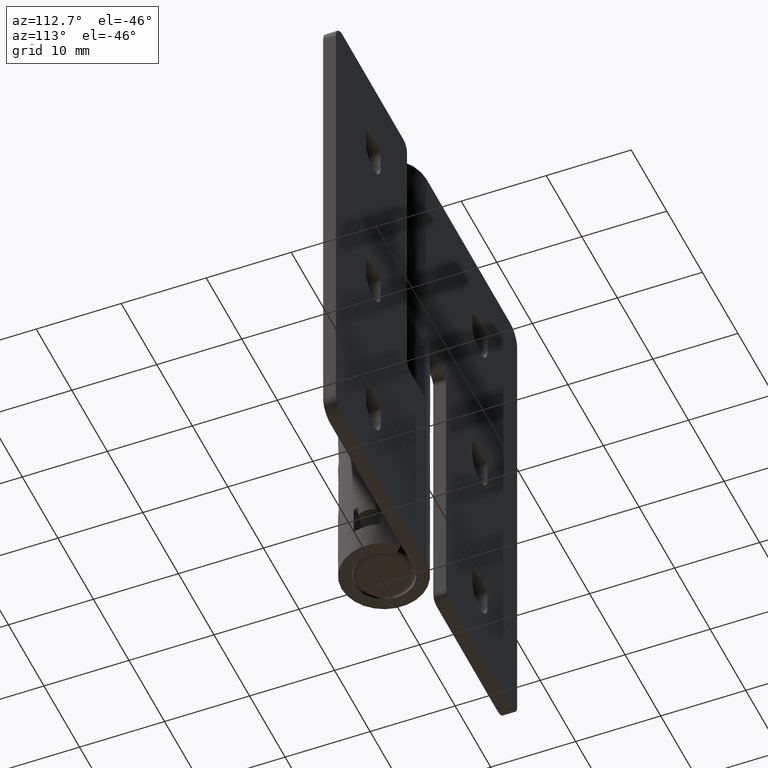
[diagram: clean part render]
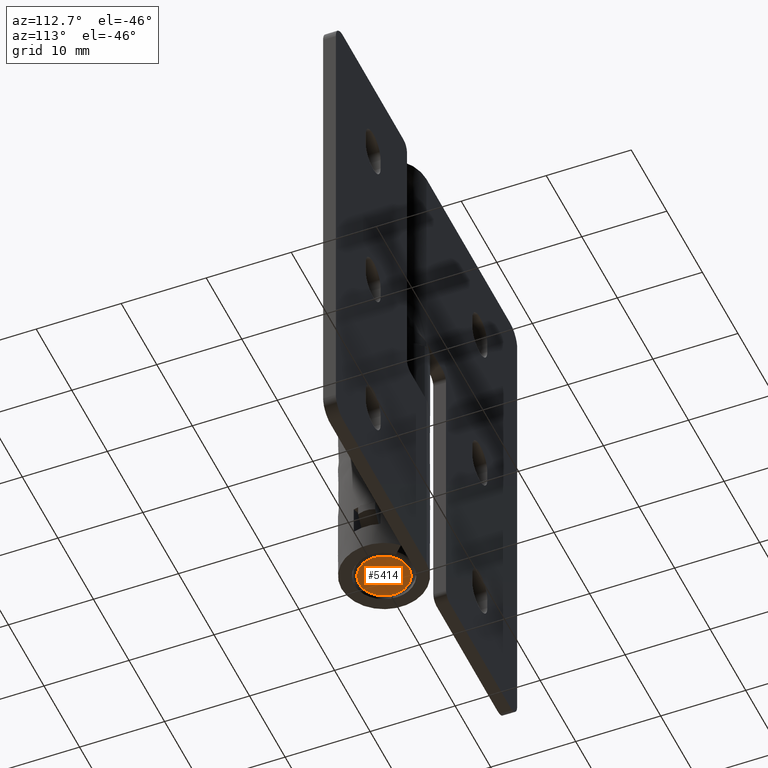
[diagram: same view with one face highlighted and labeled with its STEP entity id]
A machine part, auxiliary view. The second image highlights one B-rep face of the part: STEP entity #5414.
In plain terms, the highlighted face is a freeform B-spline surface patch.
Its self-contained STEP definition (entity closure, byte-faithful):
#5359=CARTESIAN_POINT('',(-3.298657992731017,3.257392899215179,-0.000000015166344));
#5360=CARTESIAN_POINT('',(3.298658291606754,3.257392899215179,0.000000015166352));
#5361=CARTESIAN_POINT('',(-3.298657992731017,-3.257393108163629,-0.000000015166344));
#5362=CARTESIAN_POINT('',(3.298658291606754,-3.257393108163629,0.000000015166352));
#5363=B_SPLINE_SURFACE_WITH_KNOTS('',1,1,((#5359,#5361),(#5360,#5362)),.UNSPECIFIED.,.F.,.F.,.U.,(2,2),(2,2),(0.0,6.597316284337771),(0.0,6.514786007378808),.UNSPECIFIED.);
#5364=CARTESIAN_POINT('',(-2.999052638843266,-0.075390288459089,-0.000000013788824));
#5365=VERTEX_POINT('',#5364);
#5366=CARTESIAN_POINT('',(2.999052776837279,0.075390291322349,0.000000013788903));
#5367=VERTEX_POINT('',#5366);
#5368=CARTESIAN_POINT('',(-2.999052638843266,-0.075390288459089,-0.000000013788824));
#5369=CARTESIAN_POINT('',(-2.992132014008174,-0.355309828053464,-0.000000013757004));
#5370=CARTESIAN_POINT('',(-2.919141745946228,-0.791864006691047,-0.000000013421414));
#5371=CARTESIAN_POINT('',(-2.684232733598998,-1.368756051566653,-0.000000012341364));
#5372=CARTESIAN_POINT('',(-2.437555816038792,-1.762471154593889,-0.000000011207208));
#5373=CARTESIAN_POINT('',(-2.109806122163604,-2.140215221484095,-9.700300E-009));
#5374=CARTESIAN_POINT('',(-1.705718997304424,-2.477057940285892,-7.842413E-009));
#5375=CARTESIAN_POINT('',(-1.198132996132469,-2.747979691867027,-5.508664E-009));
#5376=CARTESIAN_POINT('',(-0.590923066209532,-2.935182407461279,-2.716871E-009));
#5377=CARTESIAN_POINT('',(0.045065195217523,-2.988828432722652,2.072372E-010));
#5378=CARTESIAN_POINT('',(0.783597038772123,-2.879510416866862,3.602814E-009));
#5379=CARTESIAN_POINT('',(1.363746174978026,-2.642205296100367,6.270189E-009));
#5380=CARTESIAN_POINT('',(1.859816200837651,-2.308537181561702,8.550990E-009));
#5381=CARTESIAN_POINT('',(2.227422695878422,-1.967924216208254,0.000000010241149));
#5382=CARTESIAN_POINT('',(2.572456241008191,-1.508585497437141,0.000000011827523));
#5383=CARTESIAN_POINT('',(2.899134680218754,-0.837369283742973,0.000000013329506));
#5384=CARTESIAN_POINT('',(2.999301351117819,-0.277714329672641,0.000000013790046));
#5385=CARTESIAN_POINT('',(2.999052776837279,0.075390291322349,0.000000013788903));
#5386=B_SPLINE_CURVE_WITH_KNOTS('',3,(#5368,#5369,#5370,#5371,#5372,#5373,#5374,#5375,#5376,#5377,#5378,#5379,#5380,#5381,#5382,#5383,#5384,#5385),.UNSPECIFIED.,.F.,.U.,(4,1,1,1,1,1,1,1,1,1,1,1,1,1,1,4),(0.000000434114213,0.840010033327919,1.314784942647306,1.862636796685911,2.227863344551605,2.812224519763283,3.433113348709635,3.944441734575078,4.711356413337089,5.332223825855634,6.172256896699500,6.574012354123432,7.121857344565258,7.669707118912598,8.290598449181703,9.349716768334609),.UNSPECIFIED.);
#5387=EDGE_CURVE('',#5365,#5367,#5386,.T.);
#5388=ORIENTED_EDGE('',*,*,#5387,.F.);
#5389=CARTESIAN_POINT('',(2.999052776837279,0.075390291322349,0.000000013788903));
#5390=CARTESIAN_POINT('',(2.993298330578060,0.306614818538493,0.000000013762446));
#5391=CARTESIAN_POINT('',(2.945027973789002,0.646375509618961,0.000000013540511));
#5392=CARTESIAN_POINT('',(2.787429043083340,1.133609593960016,0.000000012815912));
#5393=CARTESIAN_POINT('',(2.546087352762242,1.627735456578226,0.000000011706286));
#5394=CARTESIAN_POINT('',(2.184118038184221,2.077730427336109,0.000000010042046));
#5395=CARTESIAN_POINT('',(1.750645322719332,2.434378539601661,8.049051E-009));
#5396=CARTESIAN_POINT('',(1.289707358664498,2.710697626560696,5.929778E-009));
#5397=CARTESIAN_POINT('',(0.710637159029020,2.912826379469511,3.267364E-009));
#5398=CARTESIAN_POINT('',(0.077923997549070,2.981819774659637,3.583139E-010));
#5399=CARTESIAN_POINT('',(-0.555390962863130,2.927082774344051,-2.553503E-009));
#5400=CARTESIAN_POINT('',(-1.094581774179376,2.761445928788392,-5.032562E-009));
#5401=CARTESIAN_POINT('',(-1.612908086551403,2.488825676257148,-7.415692E-009));
#5402=CARTESIAN_POINT('',(-1.992320885876049,2.199324674450418,-9.160133E-009));
#5403=CARTESIAN_POINT('',(-2.350602328009375,1.816091818148328,-0.000000010807418));
#5404=CARTESIAN_POINT('',(-2.611501705278523,1.431811105773197,-0.000000012006965));
#5405=CARTESIAN_POINT('',(-2.817145228391099,0.989000915934773,-0.000000012952461));
#5406=CARTESIAN_POINT('',(-2.961128588874468,0.496748403797470,-0.000000013614459));
#5407=CARTESIAN_POINT('',(-2.999084412000264,0.131565461049842,-0.000000013788970));
#5408=CARTESIAN_POINT('',(-2.999052638843266,-0.075390288459089,-0.000000013788824));
#5409=B_SPLINE_CURVE_WITH_KNOTS('',3,(#5389,#5390,#5391,#5392,#5393,#5394,#5395,#5396,#5397,#5398,#5399,#5400,#5401,#5402,#5403,#5404,#5405,#5406,#5407,#5408),.UNSPECIFIED.,.F.,.U.,(4,1,1,1,1,1,1,1,1,1,1,1,1,1,1,1,1,4),(0.000000434114774,0.693890961086113,1.022604929217911,1.533925466615707,2.337432806049396,2.739186434885353,3.213978027859775,3.944441734586570,4.565304936934549,5.113086727057221,5.843547231324248,6.245302509951820,6.866196800347365,7.267951990829464,7.815783822113265,8.254056532435426,8.728864599558611,9.349716768362008),.UNSPECIFIED.);
#5410=EDGE_CURVE('',#5367,#5365,#5409,.T.);
#5411=ORIENTED_EDGE('',*,*,#5410,.F.);
#5412=EDGE_LOOP('',(#5388,#5411));
#5413=FACE_OUTER_BOUND('',#5412,.T.);
#5414=ADVANCED_FACE('',(#5413),#5363,.T.);